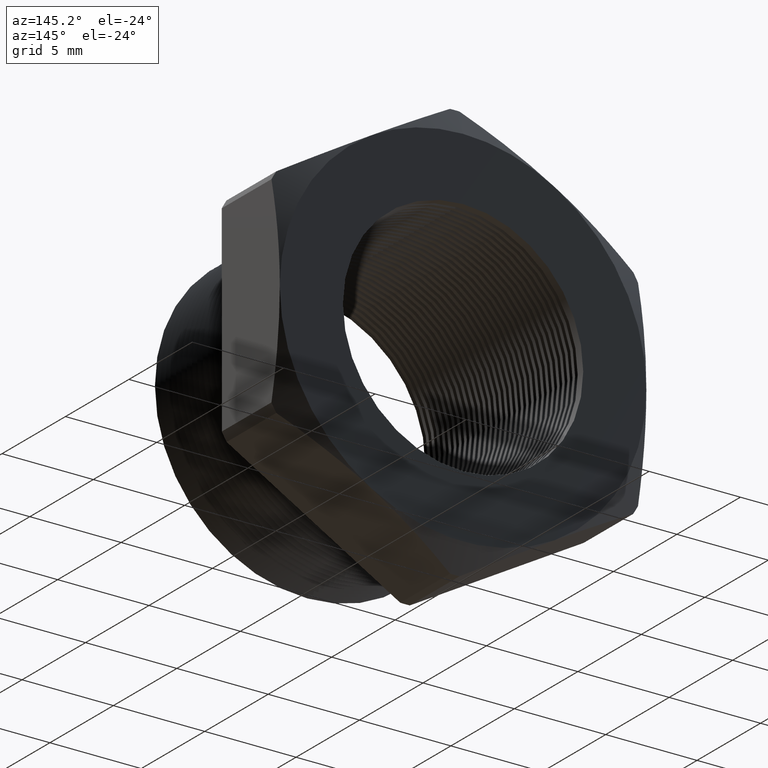
[diagram: clean part render]
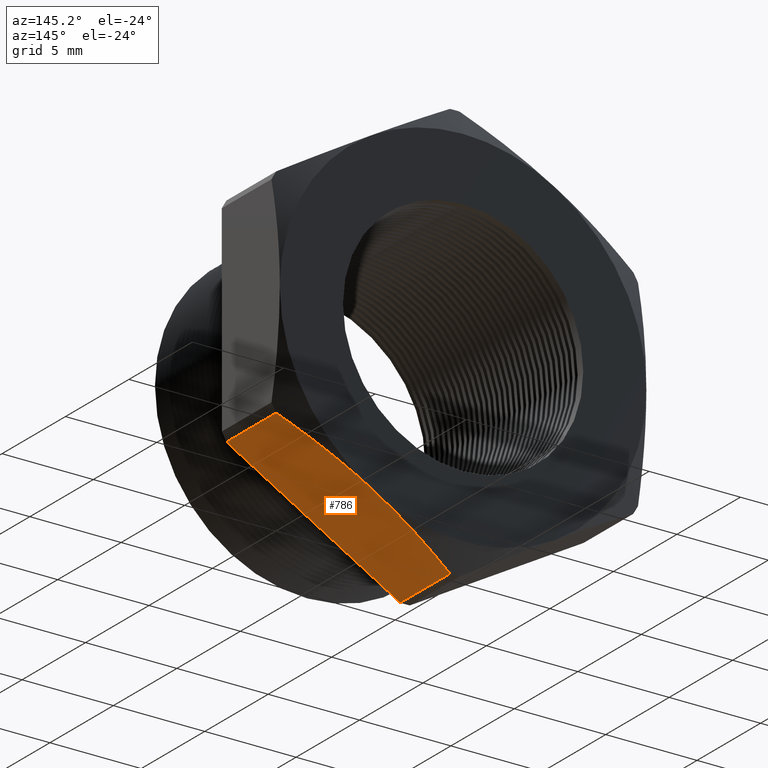
[diagram: same view with one face highlighted and labeled with its STEP entity id]
A machine part, auxiliary view. The second image highlights one B-rep face of the part: STEP entity #786.
In plain terms, the highlighted planar face has unit normal (0.5, 0, -0.866).
Its self-contained STEP definition (entity closure, byte-faithful):
#631 = EDGE_CURVE ( 'NONE', #659, #632, #3639, .T. ) ;
#632 = VERTEX_POINT ( 'NONE', #3635 ) ;
#644 = VERTEX_POINT ( 'NONE', #3680 ) ;
#659 = VERTEX_POINT ( 'NONE', #3710 ) ;
#664 = VERTEX_POINT ( 'NONE', #3698 ) ;
#704 = EDGE_CURVE ( 'NONE', #644, #705, #3746, .T. ) ;
#705 = VERTEX_POINT ( 'NONE', #3796 ) ;
#712 = ORIENTED_EDGE ( 'NONE', *, *, #713, .T. ) ;
#713 = EDGE_CURVE ( 'NONE', #664, #632, #3780, .T. ) ;
#768 = ORIENTED_EDGE ( 'NONE', *, *, #631, .F. ) ;
#769 = ORIENTED_EDGE ( 'NONE', *, *, #770, .F. ) ;
#770 = EDGE_CURVE ( 'NONE', #705, #659, #3927, .T. ) ;
#786 = ADVANCED_FACE ( 'NONE', ( #3944 ), #3943, .T. ) ;
#787 = EDGE_LOOP ( 'NONE', ( #788, #789, #712, #768, #769 ) ) ;
#788 = ORIENTED_EDGE ( 'NONE', *, *, #704, .F. ) ;
#789 = ORIENTED_EDGE ( 'NONE', *, *, #790, .T. ) ;
#790 = EDGE_CURVE ( 'NONE', #644, #664, #3997, .T. ) ;
#3635 = CARTESIAN_POINT ( 'NONE',  ( 0.3847399997329629100, 0.3817680770869766300, -0.2339769702459618100 ) ) ;
#3636 = DIRECTION ( 'NONE',  ( 0.0000000000000000000, 1.000000000000000000, 0.0000000000000000000 ) ) ;
#3637 = VECTOR ( 'NONE', #3636, 39.37007874015748100 ) ;
#3638 = CARTESIAN_POINT ( 'NONE',  ( 0.3847399997329628000, 0.0000000000000000000, -0.2339769702459618100 ) ) ;
#3639 = LINE ( 'NONE', #3638, #3637 ) ;
#3680 = CARTESIAN_POINT ( 'NONE',  ( 0.01026000026703718100, 0.3817680770869766300, -0.4501830987437449000 ) ) ;
#3698 = CARTESIAN_POINT ( 'NONE',  ( 0.1975000000000000100, 0.4075548905829479200, -0.3420800344948533600 ) ) ;
#3710 = CARTESIAN_POINT ( 'NONE',  ( 0.3847399997329628000, 0.2275548905829479800, -0.2339769702459618100 ) ) ;
#3746 = LINE ( 'NONE', #3799, #3798 ) ;
#3775 = CARTESIAN_POINT ( 'NONE',  ( 0.3538644116588921000, 0.3897502881590466700, -0.2518029993319146300 ) ) ;
#3776 = CARTESIAN_POINT ( 'NONE',  ( 0.3227431943461728200, 0.3962764420413620300, -0.2697708425249218400 ) ) ;
#3777 = CARTESIAN_POINT ( 'NONE',  ( 0.2599588776186195800, 0.4052207272773963300, -0.3060193846884615700 ) ) ;
#3778 = CARTESIAN_POINT ( 'NONE',  ( 0.2286719793528691200, 0.4075548905829478600, -0.3240828838243009500 ) ) ;
#3779 = CARTESIAN_POINT ( 'NONE',  ( 0.1975000000000000100, 0.4075548905829479200, -0.3420800344948533600 ) ) ;
#3780 = B_SPLINE_CURVE_WITH_KNOTS ( 'NONE', 3,
 ( #3779, #3778, #3777, #3776, #3775, #3826 ),
 .UNSPECIFIED., .F., .F.,
 ( 4, 2, 4 ),
 ( 0.005520192186429564600, 0.008258536476824108300, 0.01099688076721865400 ),
 .UNSPECIFIED. ) ;
#3796 = CARTESIAN_POINT ( 'NONE',  ( 0.01026000026703718400, 0.2275548905829479800, -0.4501830987437449000 ) ) ;
#3797 = DIRECTION ( 'NONE',  ( -0.0000000000000000000, -1.000000000000000000, -0.0000000000000000000 ) ) ;
#3798 = VECTOR ( 'NONE', #3797, 39.37007874015748100 ) ;
#3799 = CARTESIAN_POINT ( 'NONE',  ( 0.01026000026703719400, 0.0000000000000000000, -0.4501830987437449000 ) ) ;
#3826 = CARTESIAN_POINT ( 'NONE',  ( 0.3847399997329629100, 0.3817680770869766300, -0.2339769702459618100 ) ) ;
#3924 = DIRECTION ( 'NONE',  ( 0.8660254037844386000, 0.0000000000000000000, 0.4999999999999998300 ) ) ;
#3925 = VECTOR ( 'NONE', #3924, 39.37007874015748900 ) ;
#3926 = CARTESIAN_POINT ( 'NONE',  ( 0.4337499999999999700, 0.2275548905829479800, -0.2056810333988043100 ) ) ;
#3927 = LINE ( 'NONE', #3926, #3925 ) ;
#3939 = DIRECTION ( 'NONE',  ( -0.8660254037844386000, 0.0000000000000000000, -0.4999999999999998300 ) ) ;
#3940 = DIRECTION ( 'NONE',  ( 0.4999999999999998900, 0.0000000000000000000, -0.8660254037844387100 ) ) ;
#3941 = AXIS2_PLACEMENT_3D ( 'NONE', #3942, #3940, #3939 ) ;
#3942 = CARTESIAN_POINT ( 'NONE',  ( 1.446412442642387900E-016, 0.4075548905829479700, -0.4561067126598043500 ) ) ;
#3943 = PLANE ( 'NONE',  #3941 ) ;
#3944 = FACE_OUTER_BOUND ( 'NONE', #787, .T. ) ;
#3990 = CARTESIAN_POINT ( 'NONE',  ( 0.1975000000000000100, 0.4075548905829479200, -0.3420800344948533600 ) ) ;
#3991 = CARTESIAN_POINT ( 'NONE',  ( 0.1660817377447930100, 0.4075548905829479200, -0.3602193766653673000 ) ) ;
#3992 = CARTESIAN_POINT ( 'NONE',  ( 0.1347800776656142300, 0.4051865378565922500, -0.3782913985381633500 ) ) ;
#3993 = CARTESIAN_POINT ( 'NONE',  ( 0.07238150130182606500, 0.3962912005447678500, -0.4143172333988460700 ) ) ;
#3994 = CARTESIAN_POINT ( 'NONE',  ( 0.04128338948296789200, 0.3897884989263424300, -0.4322717366287527300 ) ) ;
#3995 = CARTESIAN_POINT ( 'NONE',  ( 0.01026000026703718100, 0.3817680770869766300, -0.4501830987437449000 ) ) ;
#3997 = B_SPLINE_CURVE_WITH_KNOTS ( 'NONE', 3,
 ( #3995, #3994, #3993, #3992, #3991, #3990 ),
 .UNSPECIFIED., .F., .F.,
 ( 4, 2, 4 ),
 ( 2.335025902591386300E-007, 0.002760212844509911800, 0.005520192186429564600 ),
 .UNSPECIFIED. ) ;